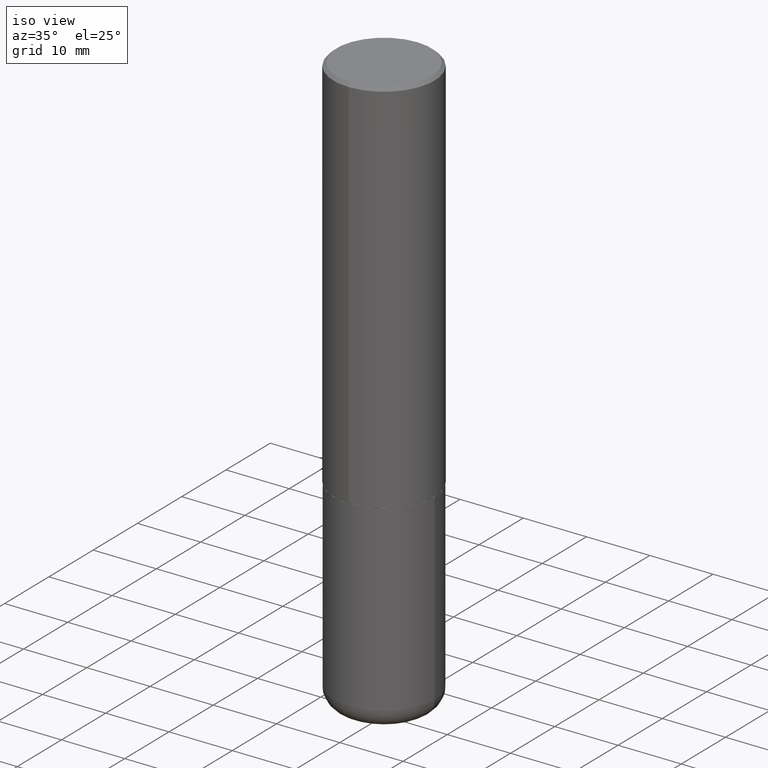
[diagram: clean part render]
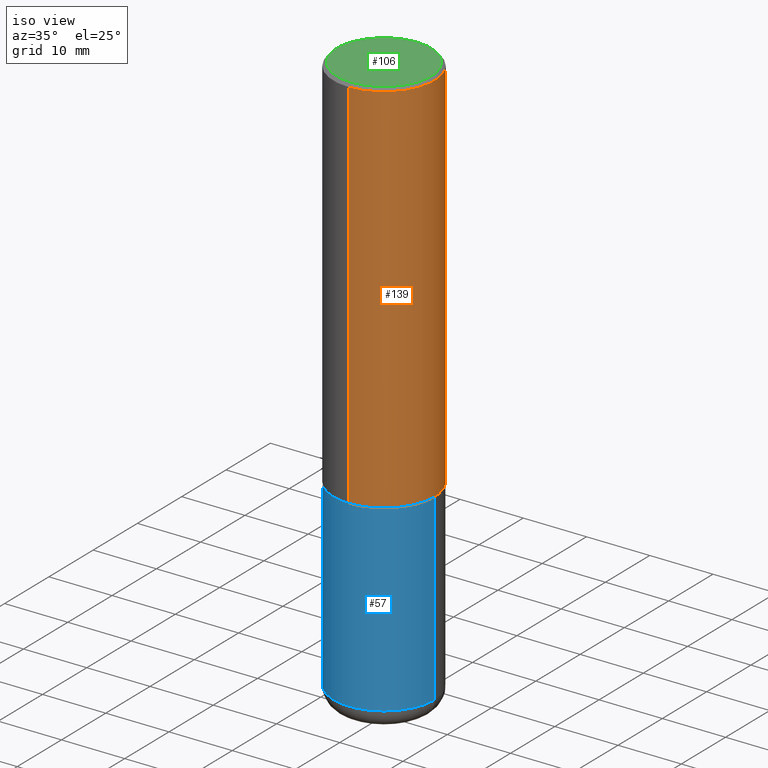
[diagram: same view with three faces highlighted in distinct colors, each labeled with its STEP entity id]
A machine part, iso view with three faces highlighted in distinct colors.
Their STEP definitions:

[orange] entity #139 — the highlighted cylindrical surface (partial cylindrical patch) has radius 7.9997 mm, axis along (-0, 0, 1).
#3 = EDGE_CURVE ( 'NONE', #365, #248, #140, .T. ) ;
#5 = DIRECTION ( 'NONE',  ( -6.982962677686265922E-15, -1.000000000000000000, 3.469564049740290009E-15 ) ) ;
#9 = CARTESIAN_POINT ( 'NONE',  ( 2.237854346276435985E-15, 0.3149500000000001743, -1.099776987529980703E-15 ) ) ;
#29 = DIRECTION ( 'NONE',  ( -2.445169622182784195E-29, 3.491909787363010375E-15, 1.000000000000000000 ) ) ;
#47 = CARTESIAN_POINT ( 'NONE',  ( -2.199284095337233467E-15, -0.3149500000000085564, -2.361199999999998411 ) ) ;
#49 = CARTESIAN_POINT ( 'NONE',  ( 2.237854346276465567E-15, 0.3149499999999920141, -2.361200000000000632 ) ) ;
#55 = EDGE_LOOP ( 'NONE', ( #196, #388, #124, #200 ) ) ;
#59 = AXIS2_PLACEMENT_3D ( 'NONE', #302, #254, #5 ) ;
#83 = FACE_OUTER_BOUND ( 'NONE', #55, .T. ) ;
#86 = CARTESIAN_POINT ( 'NONE',  ( 0.000000000000000000, 0.000000000000000000, 0.000000000000000000 ) ) ;
#95 = CARTESIAN_POINT ( 'NONE',  ( -2.160713844398143363E-15, -0.3149500000000000632, -0.01999999999999896652 ) ) ;
#109 = DIRECTION ( 'NONE',  ( -6.982962677686264344E-15, -1.000000000000000000, 3.491909787363010375E-15 ) ) ;
#114 = DIRECTION ( 'NONE',  ( -2.445169622182784195E-29, 3.491909787363009980E-15, 1.000000000000000000 ) ) ;
#120 = LINE ( 'NONE', #9, #303 ) ;
#124 = ORIENTED_EDGE ( 'NONE', *, *, #313, .F. ) ;
#128 = DIRECTION ( 'NONE',  ( -6.982962677686265922E-15, -1.000000000000000000, 3.496670018878889100E-15 ) ) ;
#129 = CIRCLE ( 'NONE', #59, 0.3149500000000002853 ) ;
#139 = ADVANCED_FACE ( 'NONE', ( #83 ), #344, .T. ) ;
#140 = LINE ( 'NONE', #359, #400 ) ;
#196 = ORIENTED_EDGE ( 'NONE', *, *, #345, .T. ) ;
#200 = ORIENTED_EDGE ( 'NONE', *, *, #3, .F. ) ;
#213 = AXIS2_PLACEMENT_3D ( 'NONE', #86, #29, #109 ) ;
#221 = VERTEX_POINT ( 'NONE', #49 ) ;
#224 = EDGE_CURVE ( 'NONE', #221, #262, #120, .T. ) ;
#248 = VERTEX_POINT ( 'NONE', #95 ) ;
#254 = DIRECTION ( 'NONE',  ( -2.445169622182784195E-29, 3.491909787363010375E-15, 1.000000000000000000 ) ) ;
#262 = VERTEX_POINT ( 'NONE', #312 ) ;
#302 = CARTESIAN_POINT ( 'NONE',  ( 5.773534511897989086E-29, -8.245097389921538599E-15, -2.361199999999999743 ) ) ;
#303 = VECTOR ( 'NONE', #114, 39.37007874015748143 ) ;
#312 = CARTESIAN_POINT ( 'NONE',  ( 2.199284095337289871E-15, 0.3149499999999999522, -0.02000000000000116962 ) ) ;
#313 = EDGE_CURVE ( 'NONE', #248, #262, #372, .T. ) ;
#344 = CYLINDRICAL_SURFACE ( 'NONE', #213, 0.3149500000000001743 ) ;
#345 = EDGE_CURVE ( 'NONE', #365, #221, #129, .T. ) ;
#356 = DIRECTION ( 'NONE',  ( -2.445169622182784195E-29, 3.491909787363009980E-15, 1.000000000000000000 ) ) ;
#359 = CARTESIAN_POINT ( 'NONE',  ( -2.199284095337290265E-15, -0.3149500000000001743, 1.099776987529980703E-15 ) ) ;
#363 = AXIS2_PLACEMENT_3D ( 'NONE', #404, #366, #128 ) ;
#365 = VERTEX_POINT ( 'NONE', #47 ) ;
#366 = DIRECTION ( 'NONE',  ( -2.445169622182784195E-29, 3.491909787363010375E-15, 1.000000000000000000 ) ) ;
#372 = CIRCLE ( 'NONE', #363, 0.3149500000000000077 ) ;
#388 = ORIENTED_EDGE ( 'NONE', *, *, #224, .T. ) ;
#400 = VECTOR ( 'NONE', #356, 39.37007874015748143 ) ;
#404 = CARTESIAN_POINT ( 'NONE',  ( 4.890339244365585170E-31, -6.983819574726043281E-17, -0.02000000000000006981 ) ) ;

[blue] entity #57 — the highlighted cylindrical surface (partial cylindrical patch) has radius 7.9997 mm, axis along (-0, 0, 1).
#4 = ORIENTED_EDGE ( 'NONE', *, *, #100, .F. ) ;
#16 = EDGE_CURVE ( 'NONE', #283, #185, #334, .T. ) ;
#30 = CARTESIAN_POINT ( 'NONE',  ( 0.3149500000000001743, -1.443308555850978931E-14, -3.503899999999999793 ) ) ;
#31 = EDGE_CURVE ( 'NONE', #299, #185, #258, .T. ) ;
#37 = DIRECTION ( 'NONE',  ( -2.445468806185136877E-29, 3.491481338843145188E-15, 1.000000000000000000 ) ) ;
#42 = CARTESIAN_POINT ( 'NONE',  ( 8.568678149992099474E-29, -1.223380146317249786E-14, -3.503899999999999793 ) ) ;
#45 = DIRECTION ( 'NONE',  ( 1.000000000000000000, -6.982962677686266711E-15, 0.000000000000000000 ) ) ;
#57 = ADVANCED_FACE ( 'NONE', ( #138 ), #115, .T. ) ;
#68 = EDGE_CURVE ( 'NONE', #266, #299, #103, .T. ) ;
#82 = DIRECTION ( 'NONE',  ( -2.445468806185136597E-29, 3.491481338843145583E-15, 1.000000000000000000 ) ) ;
#91 = AXIS2_PLACEMENT_3D ( 'NONE', #42, #378, #108 ) ;
#100 = EDGE_CURVE ( 'NONE', #266, #283, #130, .T. ) ;
#103 = CIRCLE ( 'NONE', #91, 0.3149500000000000077 ) ;
#107 = ORIENTED_EDGE ( 'NONE', *, *, #68, .T. ) ;
#108 = DIRECTION ( 'NONE',  ( 1.000000000000000000, -6.982962677686263555E-15, 0.000000000000000000 ) ) ;
#111 = CARTESIAN_POINT ( 'NONE',  ( 0.000000000000000000, 0.000000000000000000, 0.000000000000000000 ) ) ;
#115 = CYLINDRICAL_SURFACE ( 'NONE', #416, 0.3149500000000000077 ) ;
#130 = LINE ( 'NONE', #288, #317 ) ;
#134 = VECTOR ( 'NONE', #37, 39.37007874015748143 ) ;
#138 = FACE_OUTER_BOUND ( 'NONE', #301, .T. ) ;
#141 = CARTESIAN_POINT ( 'NONE',  ( 5.776686413970529753E-29, -8.247577218615278049E-15, -2.362199999999999633 ) ) ;
#147 = ORIENTED_EDGE ( 'NONE', *, *, #16, .F. ) ;
#166 = CARTESIAN_POINT ( 'NONE',  ( 0.3149500000000000077, -2.199284095337289871E-15, 1.535751875536930130E-29 ) ) ;
#182 = CARTESIAN_POINT ( 'NONE',  ( -0.3149500000000001743, -9.995947116896060296E-15, -3.503899999999999793 ) ) ;
#185 = VERTEX_POINT ( 'NONE', #347 ) ;
#191 = DIRECTION ( 'NONE',  ( 1.000000000000000000, -6.982962677686266711E-15, 4.876176775795936353E-29 ) ) ;
#216 = AXIS2_PLACEMENT_3D ( 'NONE', #141, #250, #45 ) ;
#250 = DIRECTION ( 'NONE',  ( -2.445468806185136597E-29, 3.491481338843145583E-15, 1.000000000000000000 ) ) ;
#258 = LINE ( 'NONE', #166, #134 ) ;
#266 = VERTEX_POINT ( 'NONE', #182 ) ;
#283 = VERTEX_POINT ( 'NONE', #398 ) ;
#288 = CARTESIAN_POINT ( 'NONE',  ( -0.3149500000000000077, 2.237854346276435590E-15, -1.549218606675782676E-29 ) ) ;
#299 = VERTEX_POINT ( 'NONE', #30 ) ;
#301 = EDGE_LOOP ( 'NONE', ( #4, #107, #335, #147 ) ) ;
#317 = VECTOR ( 'NONE', #374, 39.37007874015748143 ) ;
#334 = CIRCLE ( 'NONE', #216, 0.3149500000000000077 ) ;
#335 = ORIENTED_EDGE ( 'NONE', *, *, #31, .T. ) ;
#347 = CARTESIAN_POINT ( 'NONE',  ( 0.3149500000000000077, -1.044686131395256792E-14, -2.362199999999999633 ) ) ;
#374 = DIRECTION ( 'NONE',  ( -2.445468806185136877E-29, 3.491481338843145188E-15, 1.000000000000000000 ) ) ;
#378 = DIRECTION ( 'NONE',  ( -2.445468806185136597E-29, 3.491481338843145583E-15, 1.000000000000000000 ) ) ;
#398 = CARTESIAN_POINT ( 'NONE',  ( -0.3149500000000000077, -8.002834994617451969E-15, -2.362199999999999633 ) ) ;
#416 = AXIS2_PLACEMENT_3D ( 'NONE', #111, #82, #191 ) ;

[green] entity #106 — the highlighted planar face has unit normal (0, -0, -1).
#1 = CARTESIAN_POINT ( 'NONE',  ( -5.117336148260046858E-45, 7.307990422923716453E-31, 2.092834829058542282E-16 ) ) ;
#11 = AXIS2_PLACEMENT_3D ( 'NONE', #1, #386, #77 ) ;
#18 = VERTEX_POINT ( 'NONE', #165 ) ;
#48 = EDGE_CURVE ( 'NONE', #207, #18, #257, .T. ) ;
#63 = PLANE ( 'NONE',  #367 ) ;
#77 = DIRECTION ( 'NONE',  ( -6.982962677686265922E-15, -1.000000000000000000, 3.491909787363010375E-15 ) ) ;
#81 = DIRECTION ( 'NONE',  ( -6.982962677686265922E-15, -1.000000000000000000, 3.491909787363010375E-15 ) ) ;
#102 = FACE_OUTER_BOUND ( 'NONE', #390, .T. ) ;
#106 = ADVANCED_FACE ( 'NONE', ( #102 ), #63, .F. ) ;
#144 = DIRECTION ( 'NONE',  ( 6.982962677686265922E-15, 1.000000000000000000, -3.491909787363009980E-15 ) ) ;
#148 = CARTESIAN_POINT ( 'NONE',  ( -2.092108864420427242E-15, -0.2949499999999997679, 1.239222274688573328E-15 ) ) ;
#165 = CARTESIAN_POINT ( 'NONE',  ( 2.129454468560426178E-15, 0.2949499999999997679, -8.206553088768647725E-16 ) ) ;
#168 = ORIENTED_EDGE ( 'NONE', *, *, #362, .T. ) ;
#190 = AXIS2_PLACEMENT_3D ( 'NONE', #234, #267, #81 ) ;
#207 = VERTEX_POINT ( 'NONE', #148 ) ;
#219 = CARTESIAN_POINT ( 'NONE',  ( 2.059624841783562486E-15, 0.2949499999999997679, -9.252970503297919853E-16 ) ) ;
#234 = CARTESIAN_POINT ( 'NONE',  ( -5.117336148260046858E-45, 7.307990422923716453E-31, 2.092834829058542282E-16 ) ) ;
#257 = CIRCLE ( 'NONE', #11, 0.2949499999999997679 ) ;
#267 = DIRECTION ( 'NONE',  ( -2.445169622182784195E-29, 3.491909787363010375E-15, 1.000000000000000000 ) ) ;
#285 = ORIENTED_EDGE ( 'NONE', *, *, #48, .T. ) ;
#348 = DIRECTION ( 'NONE',  ( 2.445169622182783915E-29, -3.491909787363009980E-15, -1.000000000000000000 ) ) ;
#362 = EDGE_CURVE ( 'NONE', #18, #207, #385, .T. ) ;
#367 = AXIS2_PLACEMENT_3D ( 'NONE', #219, #348, #144 ) ;
#385 = CIRCLE ( 'NONE', #190, 0.2949499999999997679 ) ;
#386 = DIRECTION ( 'NONE',  ( -2.445169622182784195E-29, 3.491909787363010375E-15, 1.000000000000000000 ) ) ;
#390 = EDGE_LOOP ( 'NONE', ( #168, #285 ) ) ;